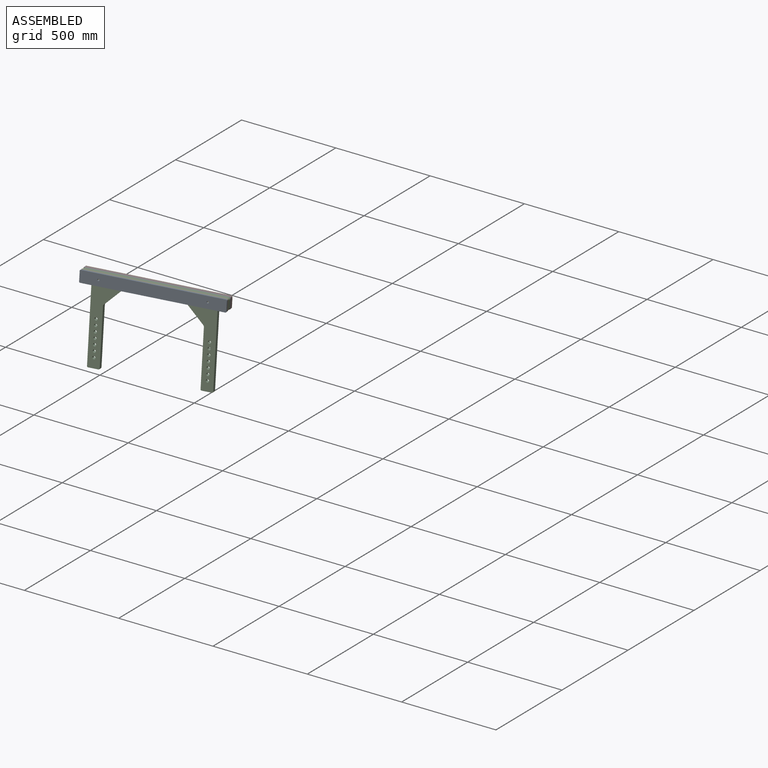
[diagram: assembled view]
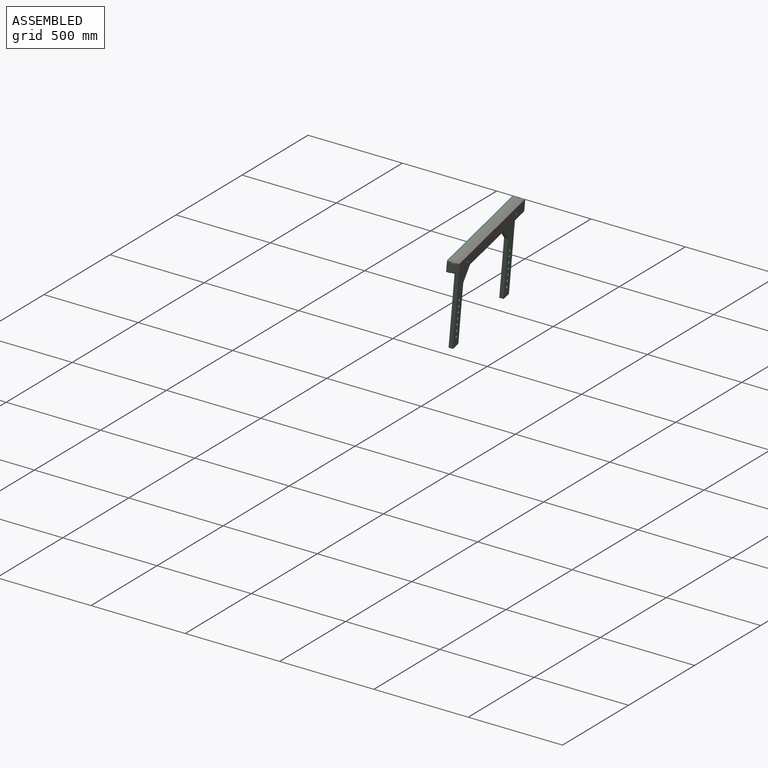
[diagram: assembled view, second angle]
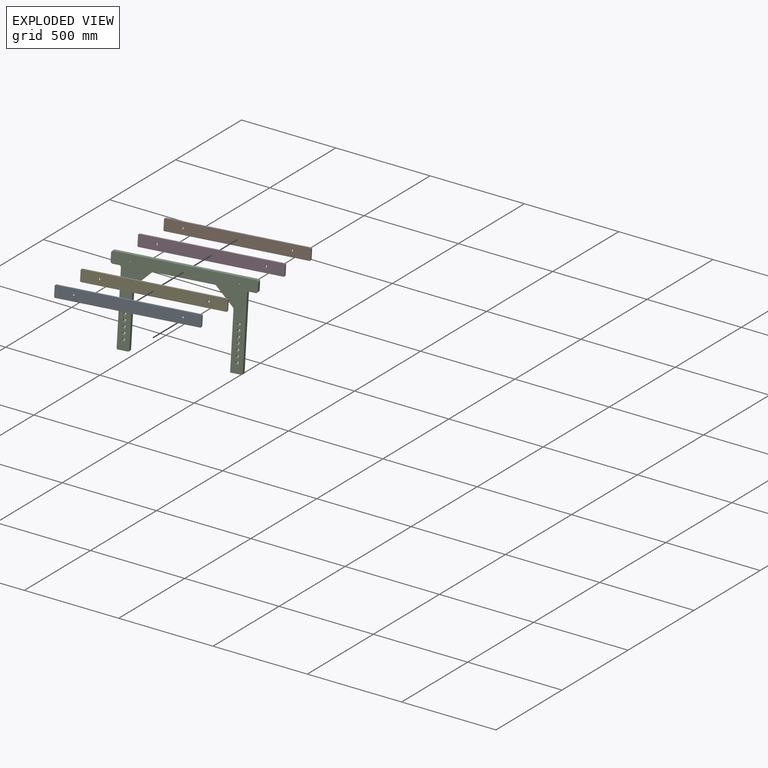
[diagram: exploded view]
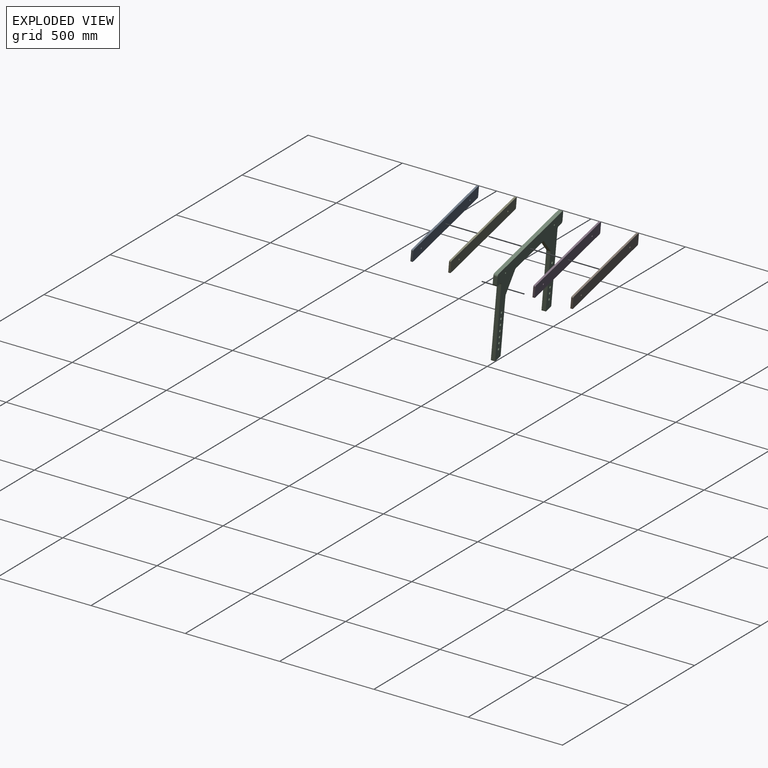
[diagram: exploded view, second angle]
ASSEMBLY  parts=5 mates=10
PART A: 12 faces, bbox 700x10x60 mm
  f0: plane 50x10mm, normal (-1,0,0), area 500mm2, adj f1,f7,f8,f9
  f1: cylinder r=5mm len=10mm, axis (0,1,0), area 78.5mm2, adj f0,f2,f8,f9
  f2: plane 690x10mm, normal (0,0,-1), area 6900mm2, adj f1,f3,f8,f9
  f3: cylinder r=5mm len=10mm, axis (0,1,0), area 78.5mm2, adj f2,f4,f8,f9
  f4: plane 50x10mm, normal (1,0,0), area 500mm2, adj f3,f5,f8,f9
  f5: cylinder r=5mm len=10mm, axis (0,1,0), area 78.5mm2, adj f4,f6,f8,f9
  f6: plane 690x10mm, normal (0,0,1), area 6900mm2, adj f5,f7,f8,f9
  f7: cylinder r=5mm len=10mm, axis (0,1,0), area 78.5mm2, adj f0,f6,f8,f9
  f8: plane 700x60mm, normal (0,-1,0), area 41821.5mm2, adj f0,f1,f2,f3,f4,f5,f6,f7
  f9: plane 700x60mm, normal (0,1,0), area 41821.5mm2, adj f0,f1,f2,f3,f4,f5,f6,f7
  f10: cylinder r=5mm len=10mm, axis (0,1,0), area 314.2mm2, adj f8,f9
  f11: cylinder r=5mm len=10mm, axis (0,1,0), area 314.2mm2, adj f8,f9
PART B: same geometry as A
PART C: 46 faces, bbox 700x20x450 mm
  f0: plane 290.86x20mm, normal (1,0,0), area 5817.2mm2, adj f1,f20,f21,f45
  f1: cylinder r=10mm len=20mm, axis (0,1,0), area 157.1mm2, adj f0,f2,f20,f21
  f2: plane 84.14x84.14mm, normal (0.71,0,-0.71), area 2379.9mm2, adj f1,f3,f20,f21
  f3: cylinder r=10mm len=20mm, axis (0,1,0), area 157.1mm2, adj f2,f4,f20,f21
  f4: plane 291.72x20mm, normal (0,0,-1), area 5834.3mm2, adj f3,f5,f20,f21
  f5: cylinder r=10mm len=20mm, axis (0,1,0), area 157.1mm2, adj f4,f6,f20,f21
  f6: plane 84.14x84.14mm, normal (-0.71,0,-0.71), area 2379.9mm2, adj f5,f7,f20,f21
  f7: cylinder r=10mm len=20mm, axis (0,1,0), area 157.1mm2, adj f6,f8,f20,f21
  f8: plane 290.86x20mm, normal (-1,0,0), area 5817.2mm2, adj f7,f20,f21,f42
  f9: plane 50x20mm, normal (0,0,-1), area 1000mm2, adj f20,f21,f42,f43
  f10: plane 375x20mm, normal (1,0,0), area 7500mm2, adj f11,f20,f21,f43
  f11: cylinder r=10mm len=20mm, axis (0,1,0), area 314.2mm2, adj f10,f12,f20,f21
  f12: plane 30x20mm, normal (0,0,-1), area 600mm2, adj f11,f20,f21,f38
  f13: plane 40x20mm, normal (1,0,0), area 800mm2, adj f20,f21,f38,f39
  f14: plane 680x20mm, normal (0,0,1), area 13600mm2, adj f20,f21,f39,f40
  f15: plane 40x20mm, normal (-1,0,0), area 800mm2, adj f20,f21,f40,f41
  f16: plane 30x20mm, normal (0,0,-1), area 600mm2, adj f17,f20,f21,f41
  f17: cylinder r=10mm len=20mm, axis (0,1,0), area 314.2mm2, adj f16,f18,f20,f21
  f18: plane 375x20mm, normal (-1,0,0), area 7500mm2, adj f17,f20,f21,f44
  f19: plane 50x20mm, normal (0,0,-1), area 1000mm2, adj f20,f21,f44,f45
  f20: plane 700x450mm, normal (0,-1,0), area 94213.1mm2, adj f0,f1,f2,f3,f4,f5,f6,f7
  f21: plane 700x450mm, normal (0,1,0), area 94213.1mm2, adj f0,f1,f2,f3,f4,f5,f6,f7
  f22: cylinder r=7.5mm len=20mm, axis (0,1,0), area 942.5mm2, adj f20,f21
  f23: cylinder r=7.5mm len=20mm, axis (0,1,0), area 942.5mm2, adj f20,f21
  f24: cylinder r=7.5mm len=20mm, axis (0,1,0), area 942.5mm2, adj f20,f21
  f25: cylinder r=7.5mm len=20mm, axis (0,1,0), area 942.5mm2, adj f20,f21
  f26: cylinder r=7.5mm len=20mm, axis (0,1,0), area 942.5mm2, adj f20,f21
  f27: cylinder r=7.5mm len=20mm, axis (0,1,0), area 942.5mm2, adj f20,f21
  f28: cylinder r=7.5mm len=20mm, axis (0,1,0), area 942.5mm2, adj f20,f21
  f29: cylinder r=7.5mm len=20mm, axis (0,1,0), area 942.5mm2, adj f20,f21
  f30: cylinder r=7.5mm len=20mm, axis (0,1,0), area 942.5mm2, adj f20,f21
  f31: cylinder r=7.5mm len=20mm, axis (0,1,0), area 942.5mm2, adj f20,f21
  f32: cylinder r=7.5mm len=20mm, axis (0,1,0), area 942.5mm2, adj f20,f21
  f33: cylinder r=7.5mm len=20mm, axis (0,1,0), area 942.5mm2, adj f20,f21
  f34: cylinder r=7.5mm len=20mm, axis (0,1,0), area 942.5mm2, adj f20,f21
  f35: cylinder r=7.5mm len=20mm, axis (0,1,0), area 942.5mm2, adj f20,f21
  f36: cylinder r=5mm len=20mm, axis (0,1,0), area 628.3mm2, adj f20,f21
  f37: cylinder r=5mm len=20mm, axis (0,1,0), area 628.3mm2, adj f20,f21
  f38: cylinder r=10mm len=20mm, axis (0,1,0), area 314.2mm2, adj f12,f13,f20,f21
  f39: cylinder r=10mm len=20mm, axis (0,-1,0), area 314.2mm2, adj f13,f14,f20,f21
  f40: cylinder r=10mm len=20mm, axis (0,-1,0), area 314.2mm2, adj f14,f15,f20,f21
  f41: cylinder r=10mm len=20mm, axis (0,1,0), area 314.2mm2, adj f15,f16,f20,f21
  f42: cylinder r=5mm len=20mm, axis (0,1,0), area 157.1mm2, adj f8,f9,f20,f21
  f43: cylinder r=5mm len=20mm, axis (0,-1,0), area 157.1mm2, adj f9,f10,f20,f21
  f44: cylinder r=5mm len=20mm, axis (0,1,0), area 157.1mm2, adj f18,f19,f20,f21
  f45: cylinder r=5mm len=20mm, axis (0,-1,0), area 157.1mm2, adj f0,f19,f20,f21
PART D: same geometry as A
PART E: same geometry as A
PLACE A rot(axis=(0,-0.04,-1),169deg) t=(216.36,-66.44,-71.17)mm
PLACE B rot(axis=(-0.41,0.04,0.91),12.1deg) t=(-482.22,-140.83,-64.66)mm
PLACE C rot(axis=(0,-0.04,-1),169deg) t=(163.47,-90.38,-460.57)mm
PLACE D rot(axis=(0,-0.04,-1),169deg) t=(208.73,-27.33,-74.59)mm
PLACE E rot(axis=(0,-0.04,-1),169deg) t=(214.46,-56.66,-72.03)mm
MATE planar D.f4 <-> C.f13  axis (-0.98,-0.19,0.02) through (-479.36,-152.88,-33.49)mm
MATE planar A.f4 <-> E.f4  axis (-0.98,-0.19,0.02) through (-471.73,-192,-30.07)mm
MATE planar B.f0 <-> D.f4  axis (-0.98,-0.19,0.02) through (-481.27,-143.1,-34.35)mm
MATE planar E.f9 <-> A.f8  axis (0.19,-0.98,0.09) through (-129.11,-120.58,-36.32)mm
MATE parallel E.f6 <-> C.f14  axis (0,0.09,1) through (-130.07,-113.07,-6.86)mm
MATE parallel A.f6 <-> E.f6  axis (0,0.09,1) through (-128.16,-122.85,-6.01)mm
MATE planar E.f8 <-> C.f21  axis (-0.19,0.98,-0.09) through (-131.02,-110.8,-37.18)mm
MATE planar B.f8 <-> D.f8  axis (0.19,-0.98,0.09) through (-136.75,-81.46,-39.74)mm
MATE planar D.f9 <-> C.f20  axis (0.19,-0.98,0.09) through (-134.84,-91.24,-38.89)mm
MATE parallel E.f8 <-> C.f21  axis (-0.19,0.98,-0.09) through (-131.02,-110.8,-37.18)mm
